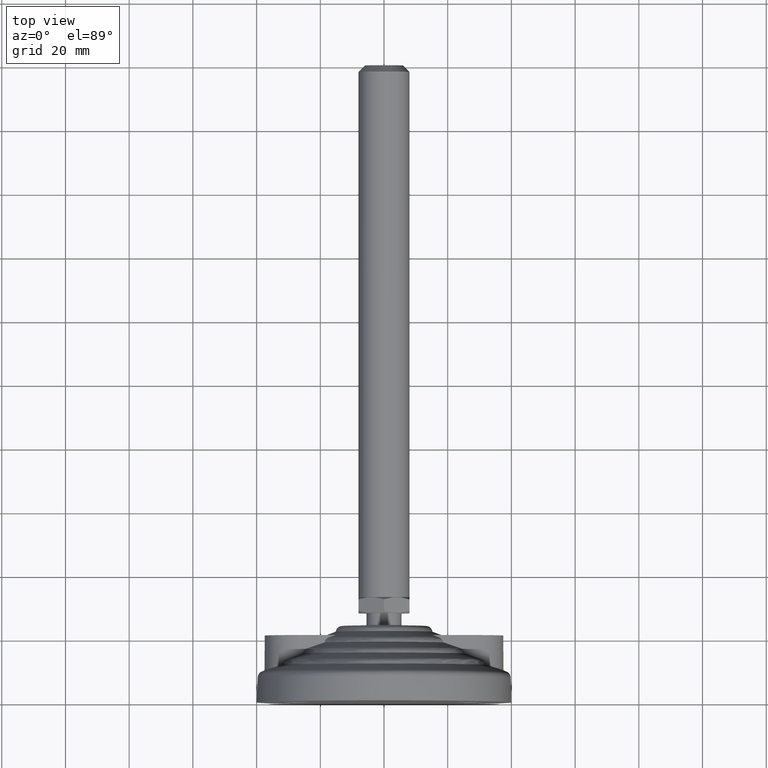
[diagram: clean part render]
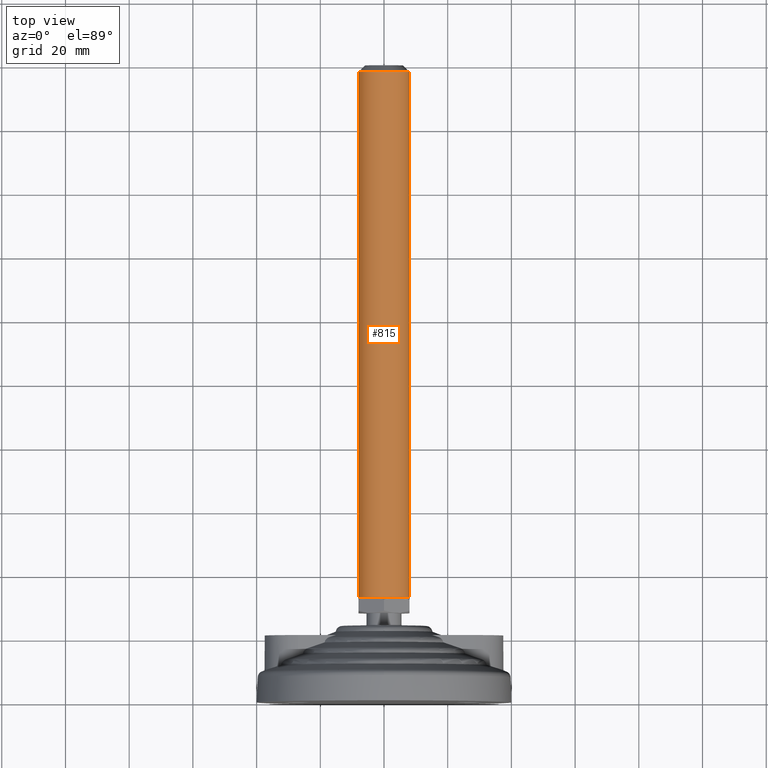
[diagram: same view with one face highlighted and labeled with its STEP entity id]
A machine part, top view. The second image highlights one B-rep face of the part: STEP entity #815.
In plain terms, the highlighted cylindrical surface (bore or boss wall) has radius 8 mm, axis along (0, -1, 0).
Its self-contained STEP definition (entity closure, byte-faithful):
#64=CYLINDRICAL_SURFACE('',#979,8.);
#155=FACE_OUTER_BOUND('',#206,.T.);
#206=EDGE_LOOP('',(#705,#706,#707,#708));
#239=LINE('',#1611,#266);
#266=VECTOR('',#1175,8.);
#315=CIRCLE('',#977,8.);
#316=CIRCLE('',#980,8.);
#383=VERTEX_POINT('',#1604);
#384=VERTEX_POINT('',#1609);
#495=EDGE_CURVE('',#383,#383,#315,.T.);
#496=EDGE_CURVE('',#384,#384,#316,.T.);
#497=EDGE_CURVE('',#384,#383,#239,.T.);
#705=ORIENTED_EDGE('',*,*,#496,.F.);
#706=ORIENTED_EDGE('',*,*,#497,.T.);
#707=ORIENTED_EDGE('',*,*,#495,.F.);
#708=ORIENTED_EDGE('',*,*,#497,.F.);
#815=ADVANCED_FACE('',(#155),#64,.T.);
#977=AXIS2_PLACEMENT_3D('',#1606,#1167,#1168);
#979=AXIS2_PLACEMENT_3D('',#1608,#1171,#1172);
#980=AXIS2_PLACEMENT_3D('',#1610,#1173,#1174);
#1167=DIRECTION('center_axis',(0.,1.,0.));
#1168=DIRECTION('ref_axis',(-1.,0.,0.));
#1171=DIRECTION('center_axis',(0.,-1.,0.));
#1172=DIRECTION('ref_axis',(-1.,0.,0.));
#1173=DIRECTION('center_axis',(0.,-1.,0.));
#1174=DIRECTION('ref_axis',(-1.,0.,0.));
#1175=DIRECTION('',(0.,1.,0.));
#1604=CARTESIAN_POINT('',(8.,198.,-9.79717439317883E-16));
#1606=CARTESIAN_POINT('Origin',(0.,198.,0.));
#1608=CARTESIAN_POINT('Origin',(0.,101.,0.));
#1609=CARTESIAN_POINT('',(8.,33.,9.79717439317883E-16));
#1610=CARTESIAN_POINT('Origin',(0.,33.,0.));
#1611=CARTESIAN_POINT('',(8.,101.,9.79717439317883E-16));